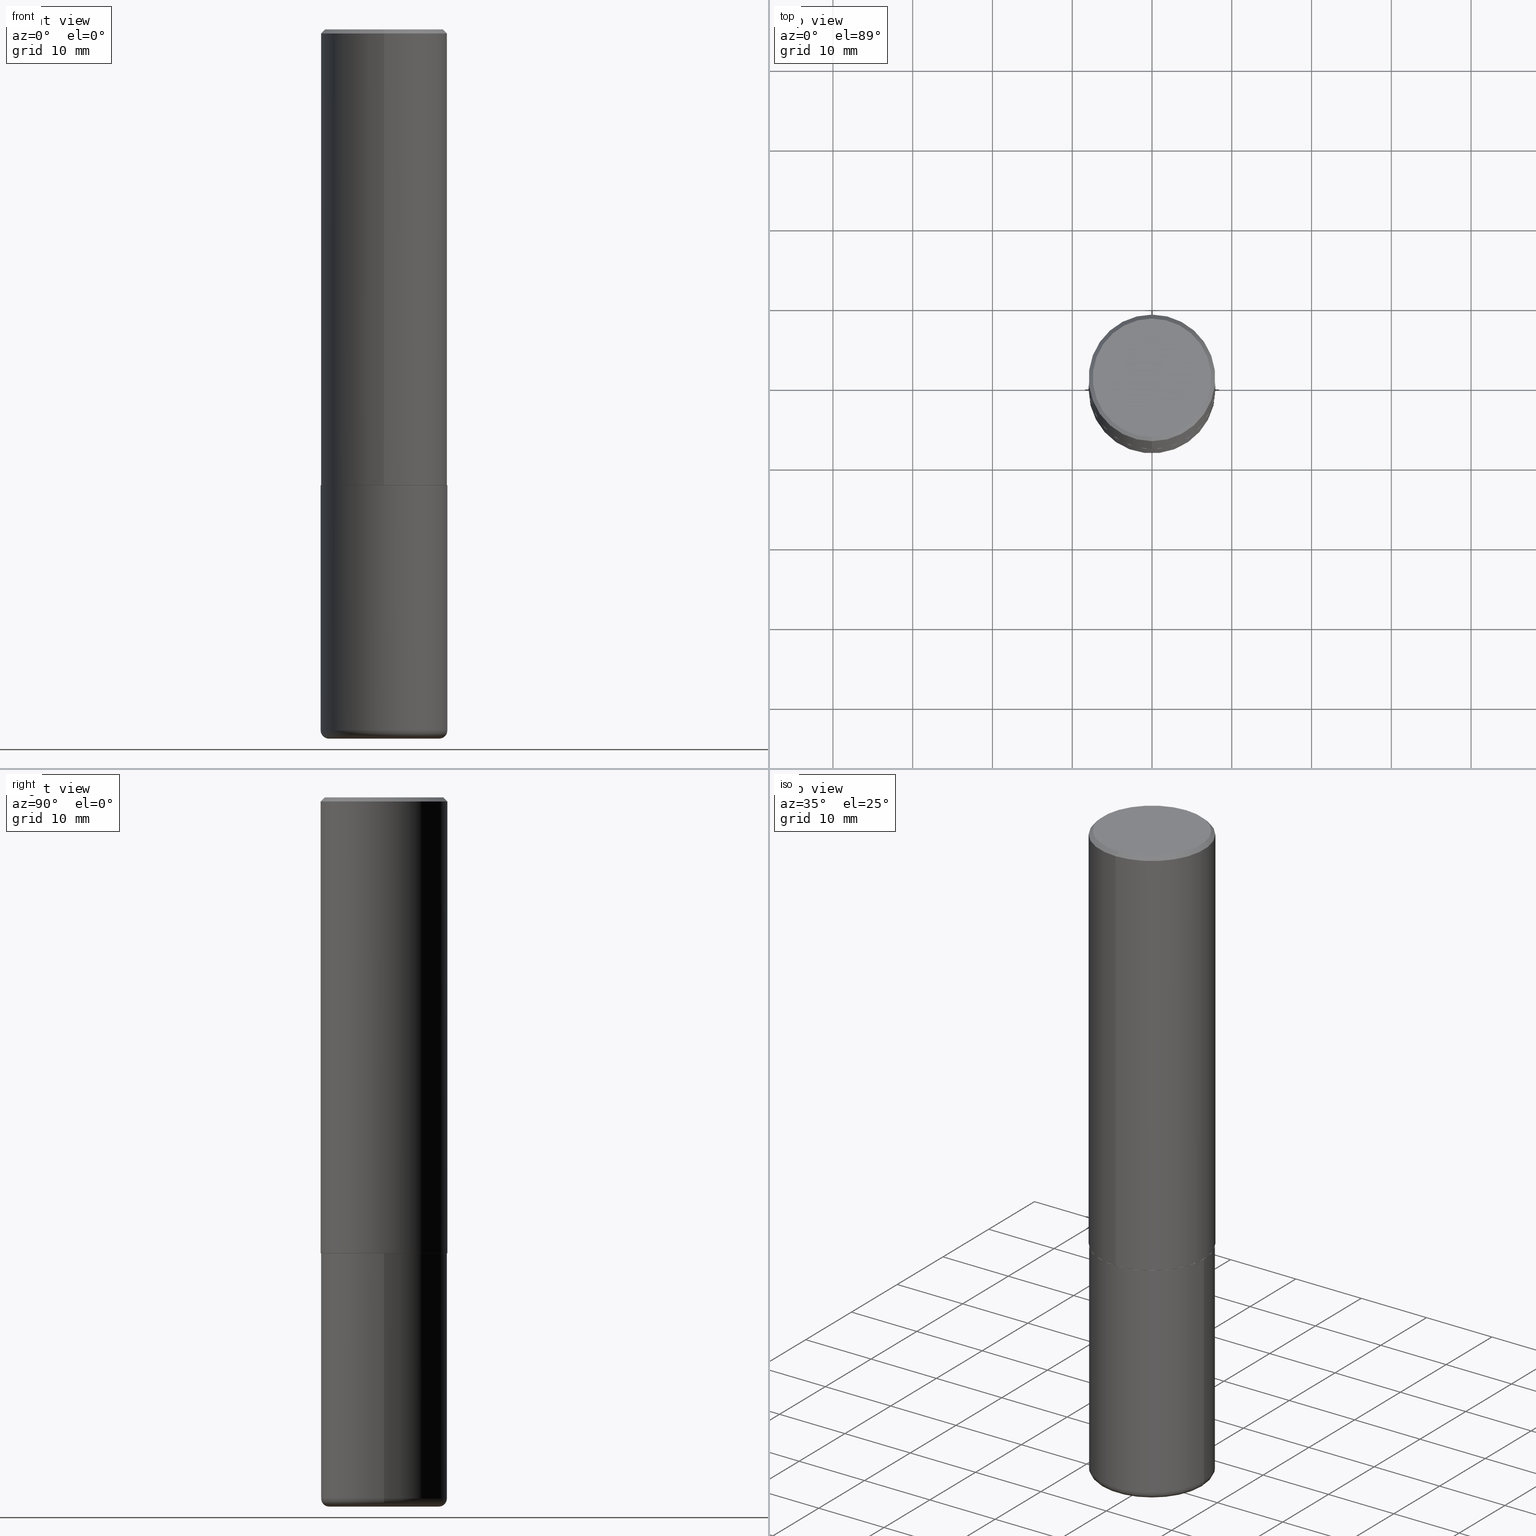
[diagram: canonical four-view strip — front | top / right | iso, engineering-drawing reading convention]
A machine part, canonical four-view strip (front | top / right | iso — engineering-drawing reading convention). The complete STEP part file that produces these views, byte-faithful:
ISO-10303-21;
HEADER;
FILE_DESCRIPTION (( 'STEP AP203' ),
    '1' );
FILE_NAME ('36861.STEP',
    '2024-03-01T18:21:53',
    ( '' ),
    ( '' ),
    'SwSTEP 2.0',
    'SolidWorks 2023',
    '' );
FILE_SCHEMA (( 'CONFIG_CONTROL_DESIGN' ));
ENDSEC;

DATA;
#1 = CYLINDRICAL_SURFACE ( 'NONE', #195, 0.3125000000000002220 ) ;
#2 = ORIENTED_EDGE ( 'NONE', *, *, #361, .T. ) ;
#3 = ORIENTED_EDGE ( 'NONE', *, *, #75, .T. ) ;
#4 = CARTESIAN_POINT ( 'NONE',  ( 8.461322069400571907E-29, -1.208052543239728275E-14, -3.459999999999999520 ) ) ;
#5 = DIRECTION ( 'NONE',  ( -2.445468806185136597E-29, 3.491481338843145583E-15, 1.000000000000000000 ) ) ;
#6 = CIRCLE ( 'NONE', #371, 0.3125000000000001665 ) ;
#7 = UNCERTAINTY_MEASURE_WITH_UNIT (LENGTH_MEASURE( 1.000000000000000082E-05 ), #348, 'distance_accuracy_value', 'NONE');
#8 = PERSON_AND_ORGANIZATION_ROLE ( 'creator' ) ;
#9 = CARTESIAN_POINT ( 'NONE',  ( -2.175192874099216718E-15, -0.3115000000000078817, -2.249999999999998224 ) ) ;
#10 = PERSON_AND_ORGANIZATION ( #57, #71 ) ;
#11 = ADVANCED_FACE ( 'NONE', ( #352 ), #149, .T. ) ;
#12 = APPROVAL_ROLE ( '' ) ;
#13 = APPROVAL_DATE_TIME ( #363, #164 ) ;
#14 = DIRECTION ( 'NONE',  ( 6.982962677686265133E-15, 1.000000000000000000, -3.496765431890254947E-15 ) ) ;
#15 = SECURITY_CLASSIFICATION ( '', '', #366 ) ;
#16 = COORDINATED_UNIVERSAL_TIME_OFFSET ( 5, 0, .BEHIND. ) ;
#17 = CARTESIAN_POINT ( 'NONE',  ( 5.502179026237298094E-29, -7.856013147513163975E-15, -2.249999999999999556 ) ) ;
#18 = ORIENTED_EDGE ( 'NONE', *, *, #405, .F. ) ;
#19 = VERTEX_POINT ( 'NONE', #284 ) ;
#20 = EDGE_LOOP ( 'NONE', ( #146, #148, #407, #311 ) ) ;
#21 = AXIS2_PLACEMENT_3D ( 'NONE', #293, #40, #393 ) ;
#22 = EDGE_LOOP ( 'NONE', ( #409, #334 ) ) ;
#23 = DIRECTION ( 'NONE',  ( -2.445468806185136597E-29, 3.491481338843145583E-15, 1.000000000000000000 ) ) ;
#24 = ORIENTED_EDGE ( 'NONE', *, *, #408, .F. ) ;
#25 = PRODUCT_DEFINITION ( 'UNKNOWN', '', #163, #364 ) ;
#26 = FACE_OUTER_BOUND ( 'NONE', #306, .T. ) ;
#27 = ORIENTED_EDGE ( 'NONE', *, *, #154, .F. ) ;
#28 = DIRECTION ( 'NONE',  ( -6.982962677686265922E-15, -1.000000000000000000, 3.507991003100177457E-15 ) ) ;
#29 = ORIENTED_EDGE ( 'NONE', *, *, #135, .T. ) ;
#30 = EDGE_CURVE ( 'NONE', #108, #211, #64, .T. ) ;
#31 = DIRECTION ( 'NONE',  ( -4.851104656540965853E-15, -0.7071067811865502373, -0.7071067811865447972 ) ) ;
#32 = LENGTH_MEASURE_WITH_UNIT ( LENGTH_MEASURE( 0.02539999999999999897 ), #323 );
#33 = CC_DESIGN_PERSON_AND_ORGANIZATION_ASSIGNMENT ( #138, #235, ( #15 ) ) ;
#34 = DIRECTION ( 'NONE',  ( 1.000000000000000000, -6.982962677686266711E-15, 4.876176775795936353E-29 ) ) ;
#35 = APPLICATION_PROTOCOL_DEFINITION ( 'international standard', 'config_control_design', 1994, #234 ) ;
#36 = AXIS2_PLACEMENT_3D ( 'NONE', #292, #153, #159 ) ;
#37 = VECTOR ( 'NONE', #59, 39.37007874015748143 ) ;
#38 = APPROVAL_DATE_TIME ( #96, #217 ) ;
#39 = CARTESIAN_POINT ( 'NONE',  ( 4.890825801099838597E-31, -6.983122797789506086E-17, -0.02000000000000007327 ) ) ;
#40 = DIRECTION ( 'NONE',  ( 0.000000000000000000, 0.000000000000000000, 1.000000000000000000 ) ) ;
#41 = DIRECTION ( 'NONE',  ( 1.000000000000000000, -6.982962677686269077E-15, 0.000000000000000000 ) ) ;
#42 = AXIS2_PLACEMENT_3D ( 'NONE', #395, #229, #357 ) ;
#43 = DIRECTION ( 'NONE',  ( -6.982962677686265922E-15, -1.000000000000000000, 3.507991003100177457E-15 ) ) ;
#44 = APPLICATION_CONTEXT ( 'configuration controlled 3d designs of mechanical parts and assemblies' ) ;
#45 = SHAPE_DEFINITION_REPRESENTATION ( #301, #400 ) ;
#46 = CARTESIAN_POINT ( 'NONE',  ( -2.075300644325888676E-15, -0.2925000000000000377, 1.025573639231903446E-15 ) ) ;
#47 = VERTEX_POINT ( 'NONE', #313 ) ;
#48 = CIRCLE ( 'NONE', #130, 0.2925000000000000377 ) ;
#49 = ADVANCED_FACE ( 'NONE', ( #126 ), #299, .T. ) ;
#50 = LOCAL_TIME ( 13, 21, 53.00000000000000000, #231 ) ;
#51 = ORIENTED_EDGE ( 'NONE', *, *, #258, .F. ) ;
#52 = ORIENTED_EDGE ( 'NONE', *, *, #133, .F. ) ;
#53 = ORIENTED_EDGE ( 'NONE', *, *, #189, .F. ) ;
#54 = MANIFOLD_SOLID_BREP ( 'Body-Move/Copy2[1]', #222 ) ;
#55 = DIRECTION ( 'NONE',  ( -6.982962677686265922E-15, -1.000000000000000000, 3.491561398894740027E-15 ) ) ;
#56 = CIRCLE ( 'NONE', #261, 0.3114999999999999991 ) ;
#57 = PERSON ( 'UNSPECIFIED', 'UNSPECIFIED', 'UNSPECIFIED', ('UNSPECIFIED'), ('UNSPECIFIED'), ('UNSPECIFIED') ) ;
#58 = ORIENTED_EDGE ( 'NONE', *, *, #394, .F. ) ;
#59 = DIRECTION ( 'NONE',  ( 5.024295867789263036E-15, 0.7071067811867189912, 0.7071067811863760433 ) ) ;
#60 = DIRECTION ( 'NONE',  ( 1.000000000000000000, -6.982962677686264344E-15, 0.000000000000000000 ) ) ;
#61 = DIRECTION ( 'NONE',  ( -6.982962677686265133E-15, -1.000000000000000000, 3.496765431890254947E-15 ) ) ;
#62 = CARTESIAN_POINT ( 'NONE',  ( 8.461322069400571907E-29, -1.208052543239728275E-14, -3.459999999999999520 ) ) ;
#63 = EDGE_CURVE ( 'NONE', #70, #179, #207, .T. ) ;
#64 = CIRCLE ( 'NONE', #416, 0.3124999999999999445 ) ;
#65 = DIRECTION ( 'NONE',  ( 1.000000000000000000, -6.982962677686269077E-15, 0.000000000000000000 ) ) ;
#66 = ADVANCED_FACE ( 'NONE', ( #68 ), #355, .T. ) ;
#67 = CARTESIAN_POINT ( 'NONE',  ( 0.3125000000000000000, -1.003800884917403522E-14, -2.249999999999999556 ) ) ;
#68 = FACE_OUTER_BOUND ( 'NONE', #412, .T. ) ;
#69 =( NAMED_UNIT ( * ) SI_UNIT ( $, .STERADIAN. ) SOLID_ANGLE_UNIT ( ) );
#70 = VERTEX_POINT ( 'NONE', #128 ) ;
#71 = ORGANIZATION ( 'UNSPECIFIED', 'UNSPECIFIED', '' ) ;
#72 = FACE_OUTER_BOUND ( 'NONE', #20, .T. ) ;
#73 = DIRECTION ( 'NONE',  ( 2.445412900549910575E-29, -3.491561398894740027E-15, -1.000000000000000000 ) ) ;
#74 = CIRCLE ( 'NONE', #232, 0.3124999999999999445 ) ;
#75 = EDGE_CURVE ( 'NONE', #47, #411, #335, .T. ) ;
#76 = DATE_TIME_ROLE ( 'classification_date' ) ;
#77 = FACE_OUTER_BOUND ( 'NONE', #209, .T. ) ;
#78 = ORIENTED_EDGE ( 'NONE', *, *, #109, .T. ) ;
#79 = VERTEX_POINT ( 'NONE', #95 ) ;
#80 = CIRCLE ( 'NONE', #308, 0.2725000000000000200 ) ;
#81 = ORIENTED_EDGE ( 'NONE', *, *, #154, .T. ) ;
#82 = EDGE_LOOP ( 'NONE', ( #281, #250, #249, #307 ) ) ;
#83 = PLANE ( 'NONE',  #379 ) ;
#84 = ORIENTED_EDGE ( 'NONE', *, *, #109, .F. ) ;
#85 = VECTOR ( 'NONE', #92, 39.37007874015748143 ) ;
#86 = CARTESIAN_POINT ( 'NONE',  ( 4.890825801099838597E-31, -6.983122797789506086E-17, -0.02000000000000007327 ) ) ;
#87 = AXIS2_PLACEMENT_3D ( 'NONE', #140, #178, #285 ) ;
#88 = CARTESIAN_POINT ( 'NONE',  ( -1.049554112522401722E-46, 1.498553730746400387E-32, 4.291930055191840733E-18 ) ) ;
#89 = CARTESIAN_POINT ( 'NONE',  ( 5.499733613336748778E-29, -7.852521586114269735E-15, -2.248999999999999666 ) ) ;
#90 = EDGE_CURVE ( 'NONE', #242, #344, #322, .T. ) ;
#91 = CARTESIAN_POINT ( 'NONE',  ( 0.2725000000000000200, -1.412304201562051765E-14, -3.500000000000000444 ) ) ;
#92 = DIRECTION ( 'NONE',  ( 4.937700262164549620E-15, 0.7071067811865453523, -0.7071067811865496822 ) ) ;
#93 = ADVANCED_FACE ( 'NONE', ( #262 ), #156, .T. ) ;
#94 = DIRECTION ( 'NONE',  ( -6.982962677686266711E-15, -1.000000000000000000, 3.491481338843145583E-15 ) ) ;
#95 = CARTESIAN_POINT ( 'NONE',  ( -0.2725000000000000200, -1.007201755707584997E-14, -3.500000000000000444 ) ) ;
#96 = DATE_AND_TIME ( #298, #325 ) ;
#97 = FACE_OUTER_BOUND ( 'NONE', #369, .T. ) ;
#98 = PERSON_AND_ORGANIZATION ( #57, #71 ) ;
#99 = DIRECTION ( 'NONE',  ( -4.937700262165728178E-15, -0.7071067811867141062, 0.7071067811863809283 ) ) ;
#100 = COORDINATED_UNIVERSAL_TIME_OFFSET ( 5, 0, .BEHIND. ) ;
#101 = CC_DESIGN_SECURITY_CLASSIFICATION ( #15, ( #163 ) ) ;
#102 = CARTESIAN_POINT ( 'NONE',  ( -0.3125000000000000000, 2.220446049250313081E-15, -1.537167215704658232E-29 ) ) ;
#103 = ADVANCED_FACE ( 'NONE', ( #97 ), #270, .T. ) ;
#104 = CC_DESIGN_PERSON_AND_ORGANIZATION_ASSIGNMENT ( #386, #8, ( #163 ) ) ;
#105 = CARTESIAN_POINT ( 'NONE',  ( 2.182175836776959530E-15, 0.3125000000000000555, -0.02000000000000116615 ) ) ;
#106 = CC_DESIGN_APPROVAL ( #217, ( #25 ) ) ;
#107 = CARTESIAN_POINT ( 'NONE',  ( -2.143905624303604008E-15, -0.3125000000000002220, -0.01999999999999898040 ) ) ;
#108 = VERTEX_POINT ( 'NONE', #381 ) ;
#109 = EDGE_CURVE ( 'NONE', #242, #19, #48, .T. ) ;
#110 = FACE_OUTER_BOUND ( 'NONE', #342, .T. ) ;
#111 = EDGE_LOOP ( 'NONE', ( #2, #276, #176, #53 ) ) ;
#112 = ORIENTED_EDGE ( 'NONE', *, *, #200, .T. ) ;
#113 = VECTOR ( 'NONE', #418, 39.37007874015748143 ) ;
#114 = ORIENTED_EDGE ( 'NONE', *, *, #115, .F. ) ;
#115 = EDGE_CURVE ( 'NONE', #179, #175, #287, .T. ) ;
#116 = EDGE_LOOP ( 'NONE', ( #280, #403, #27, #214 ) ) ;
#117 = CC_DESIGN_DATE_AND_TIME_ASSIGNMENT ( #165, #259, ( #25 ) ) ;
#118 = DIRECTION ( 'NONE',  ( -1.000000000000000000, 6.982962677686265922E-15, -4.876176775795935793E-29 ) ) ;
#119 = CARTESIAN_POINT ( 'NONE',  ( 8.461322069400571907E-29, -1.208052543239728275E-14, -3.459999999999999520 ) ) ;
#120 = AXIS2_PLACEMENT_3D ( 'NONE', #39, #219, #14 ) ;
#121 = CARTESIAN_POINT ( 'NONE',  ( 5.502179026237298094E-29, -7.856013147513163975E-15, -2.249999999999999556 ) ) ;
#122 = EDGE_CURVE ( 'NONE', #70, #344, #123, .T. ) ;
#123 = LINE ( 'NONE', #255, #316 ) ;
#124 = DIRECTION ( 'NONE',  ( -2.445412900549910575E-29, 3.491561398894740027E-15, 1.000000000000000000 ) ) ;
#125 = APPROVAL ( #264, 'UNSPECIFIED' ) ;
#126 = FACE_OUTER_BOUND ( 'NONE', #161, .T. ) ;
#127 = CALENDAR_DATE ( 2024, 1, 3 ) ;
#128 = CARTESIAN_POINT ( 'NONE',  ( -2.182175836776905099E-15, -0.3125000000000081601, -2.248999999999998778 ) ) ;
#129 = DIRECTION ( 'NONE',  ( -1.000000000000000000, 7.105427357601027102E-15, 0.000000000000000000 ) ) ;
#130 = AXIS2_PLACEMENT_3D ( 'NONE', #88, #383, #218 ) ;
#131 = AXIS2_PLACEMENT_3D ( 'NONE', #351, #134, #129 ) ;
#132 = CARTESIAN_POINT ( 'NONE',  ( 5.502304813916556222E-29, -7.855833012397076871E-15, -2.249999999999999556 ) ) ;
#133 = EDGE_CURVE ( 'NONE', #19, #175, #257, .T. ) ;
#134 = DIRECTION ( 'NONE',  ( 7.105427357601001859E-15, 1.000000000000000000, -3.491481338843145583E-15 ) ) ;
#135 = EDGE_CURVE ( 'NONE', #211, #411, #350, .T. ) ;
#136 = COORDINATED_UNIVERSAL_TIME_OFFSET ( 5, 0, .BEHIND. ) ;
#137 = CIRCLE ( 'NONE', #208, 0.3125000000000001665 ) ;
#138 = PERSON_AND_ORGANIZATION ( #57, #71 ) ;
#139 = CALENDAR_DATE ( 2024, 1, 3 ) ;
#140 = CARTESIAN_POINT ( 'NONE',  ( 2.042516583223233328E-15, 0.2925000000000000377, -1.019135744149115702E-15 ) ) ;
#141 = VECTOR ( 'NONE', #99, 39.37007874015748143 ) ;
#142 = ORIENTED_EDGE ( 'NONE', *, *, #329, .T. ) ;
#143 = AXIS2_PLACEMENT_3D ( 'NONE', #168, #205, #256 ) ;
#144 = EDGE_CURVE ( 'NONE', #108, #47, #300, .T. ) ;
#145 = FACE_OUTER_BOUND ( 'NONE', #305, .T. ) ;
#146 = ORIENTED_EDGE ( 'NONE', *, *, #90, .F. ) ;
#147 = ORIENTED_EDGE ( 'NONE', *, *, #405, .T. ) ;
#148 = ORIENTED_EDGE ( 'NONE', *, *, #329, .F. ) ;
#149 = CONICAL_SURFACE ( 'NONE', #36, 0.3114999999999999991, 0.7853981633976873100 ) ;
#150 =( GEOMETRIC_REPRESENTATION_CONTEXT ( 3 ) GLOBAL_UNCERTAINTY_ASSIGNED_CONTEXT ( ( #7 ) ) GLOBAL_UNIT_ASSIGNED_CONTEXT ( ( #348, #320, #69 ) ) REPRESENTATION_CONTEXT ( 'NONE', 'WORKASPACE' ) );
#151 = VERTEX_POINT ( 'NONE', #399 ) ;
#152 = FACE_OUTER_BOUND ( 'NONE', #373, .T. ) ;
#153 = DIRECTION ( 'NONE',  ( -2.445412900549910575E-29, 3.491561398894740027E-15, 1.000000000000000000 ) ) ;
#154 = EDGE_CURVE ( 'NONE', #411, #47, #324, .T. ) ;
#155 = PLANE ( 'NONE',  #87 ) ;
#156 = CYLINDRICAL_SURFACE ( 'NONE', #278, 0.3125000000000000000 ) ;
#157 = VECTOR ( 'NONE', #202, 39.37007874015748143 ) ;
#158 = FACE_OUTER_BOUND ( 'NONE', #82, .T. ) ;
#159 = DIRECTION ( 'NONE',  ( -6.982962677686265922E-15, -1.000000000000000000, 3.507991003100177457E-15 ) ) ;
#160 = ORIENTED_EDGE ( 'NONE', *, *, #345, .F. ) ;
#161 = EDGE_LOOP ( 'NONE', ( #24, #112, #147, #172 ) ) ;
#162 = CALENDAR_DATE ( 2024, 1, 3 ) ;
#163 = PRODUCT_DEFINITION_FORMATION_WITH_SPECIFIED_SOURCE ( 'ANY', '', #182, .NOT_KNOWN. ) ;
#164 = APPROVAL ( #404, 'UNSPECIFIED' ) ;
#165 = DATE_AND_TIME ( #127, #380 ) ;
#166 = DIRECTION ( 'NONE',  ( 1.000000000000000000, -6.982962677686264344E-15, 0.000000000000000000 ) ) ;
#167 = CIRCLE ( 'NONE', #224, 0.3125000000000002776 ) ;
#168 = CARTESIAN_POINT ( 'NONE',  ( 5.502304813916556222E-29, -7.855833012397076871E-15, -2.249999999999999556 ) ) ;
#169 = COORDINATED_UNIVERSAL_TIME_OFFSET ( 5, 0, .BEHIND. ) ;
#170 = FACE_OUTER_BOUND ( 'NONE', #22, .T. ) ;
#171 = LOCAL_TIME ( 13, 21, 53.00000000000000000, #16 ) ;
#172 = ORIENTED_EDGE ( 'NONE', *, *, #30, .F. ) ;
#173 = ORIENTED_EDGE ( 'NONE', *, *, #200, .F. ) ;
#174 = ADVANCED_FACE ( 'NONE', ( #72 ), #286, .T. ) ;
#175 = VERTEX_POINT ( 'NONE', #105 ) ;
#176 = ORIENTED_EDGE ( 'NONE', *, *, #63, .F. ) ;
#177 = CONICAL_SURFACE ( 'NONE', #120, 0.3125000000000001665, 0.7853981633974487231 ) ;
#178 = DIRECTION ( 'NONE',  ( 2.445412900549910856E-29, -3.491561398894739632E-15, -1.000000000000000000 ) ) ;
#179 = VERTEX_POINT ( 'NONE', #239 ) ;
#180 = CARTESIAN_POINT ( 'NONE',  ( 0.3125000000000001665, -1.426270126917424109E-14, -3.459999999999999520 ) ) ;
#181 = DIRECTION ( 'NONE',  ( 1.000000000000000000, -6.982962677686269077E-15, 4.883557194083113462E-29 ) ) ;
#182 = PRODUCT ( '36861', '36861', '', ( #326 ) ) ;
#183 = CARTESIAN_POINT ( 'NONE',  ( 5.502179026237298094E-29, -7.856013147513163975E-15, -2.249999999999999556 ) ) ;
#184 = CARTESIAN_POINT ( 'NONE',  ( 8.461322069400571907E-29, -1.208052543239728275E-14, -3.459999999999999520 ) ) ;
#185 = AXIS2_PLACEMENT_3D ( 'NONE', #119, #227, #252 ) ;
#186 = CIRCLE ( 'NONE', #358, 0.04000000000000025757 ) ;
#187 = DIRECTION ( 'NONE',  ( 1.000000000000000000, -6.982962677686287221E-15, 0.000000000000000000 ) ) ;
#188 = DIRECTION ( 'NONE',  ( -6.982962677686265922E-15, -1.000000000000000000, 3.496765431890253764E-15 ) ) ;
#189 = EDGE_CURVE ( 'NONE', #206, #70, #296, .T. ) ;
#190 = MANIFOLD_SOLID_BREP ( 'Body-Move/Copy2[2]', #303 ) ;
#191 = DIRECTION ( 'NONE',  ( -2.445412900549910575E-29, 3.491561398894740027E-15, 1.000000000000000000 ) ) ;
#192 = APPROVAL_ROLE ( '' ) ;
#193 = ORIENTED_EDGE ( 'NONE', *, *, #327, .T. ) ;
#194 = VECTOR ( 'NONE', #31, 39.37007874015748143 ) ;
#195 = AXIS2_PLACEMENT_3D ( 'NONE', #213, #340, #55 ) ;
#196 = DIMENSIONAL_EXPONENTS ( 1.000000000000000000, 0.000000000000000000, 0.000000000000000000, 0.000000000000000000, 0.000000000000000000, 0.000000000000000000, 0.000000000000000000 ) ;
#197 = AXIS2_PLACEMENT_3D ( 'NONE', #304, #275, #118 ) ;
#198 = FACE_OUTER_BOUND ( 'NONE', #248, .T. ) ;
#199 = PERSON_AND_ORGANIZATION ( #57, #71 ) ;
#200 = EDGE_CURVE ( 'NONE', #79, #370, #245, .T. ) ;
#201 = CIRCLE ( 'NONE', #131, 0.04000000000000025757 ) ;
#202 = DIRECTION ( 'NONE',  ( -2.445468806185136877E-29, 3.491481338843145188E-15, 1.000000000000000000 ) ) ;
#203 = ADVANCED_FACE ( 'NONE', ( #198 ), #177, .T. ) ;
#204 = CARTESIAN_POINT ( 'NONE',  ( 5.502179026237298094E-29, -7.856013147513165553E-15, -2.249999999999999556 ) ) ;
#205 = DIRECTION ( 'NONE',  ( 2.438088387897960049E-29, -3.491481338843145188E-15, -1.000000000000000000 ) ) ;
#206 = VERTEX_POINT ( 'NONE', #216 ) ;
#207 = CIRCLE ( 'NONE', #265, 0.3125000000000002776 ) ;
#208 = AXIS2_PLACEMENT_3D ( 'NONE', #86, #402, #384 ) ;
#209 = EDGE_LOOP ( 'NONE', ( #51, #336, #244, #160 ) ) ;
#210 = ADVANCED_FACE ( 'NONE', ( #77 ), #238, .T. ) ;
#211 = VERTEX_POINT ( 'NONE', #180 ) ;
#212 = ORIENTED_EDGE ( 'NONE', *, *, #408, .T. ) ;
#213 = CARTESIAN_POINT ( 'NONE',  ( 0.000000000000000000, 0.000000000000000000, 0.000000000000000000 ) ) ;
#214 = ORIENTED_EDGE ( 'NONE', *, *, #135, .F. ) ;
#215 = AXIS2_PLACEMENT_3D ( 'NONE', #382, #272, #377 ) ;
#216 = CARTESIAN_POINT ( 'NONE',  ( -2.175192874099216718E-15, -0.3115000000000078817, -2.249999999999998224 ) ) ;
#217 = APPROVAL ( #353, 'UNSPECIFIED' ) ;
#218 = DIRECTION ( 'NONE',  ( -6.982962677686266711E-15, -1.000000000000000000, 3.491561398894740027E-15 ) ) ;
#219 = DIRECTION ( 'NONE',  ( 2.445412900549910575E-29, -3.491561398894740027E-15, -1.000000000000000000 ) ) ;
#220 = DIRECTION ( 'NONE',  ( -6.982962677686265922E-15, -1.000000000000000000, 3.491561398894740027E-15 ) ) ;
#221 = CARTESIAN_POINT ( 'NONE',  ( -2.143905624303604008E-15, -0.3125000000000002220, -0.01999999999999898040 ) ) ;
#222 = CLOSED_SHELL ( 'NONE', ( #93, #103, #269, #223, #49, #267 ) ) ;
#223 = ADVANCED_FACE ( 'NONE', ( #152 ), #283, .T. ) ;
#224 = AXIS2_PLACEMENT_3D ( 'NONE', #89, #241, #368 ) ;
#225 = CARTESIAN_POINT ( 'NONE',  ( 0.2725000000000000200, -1.398338276206678948E-14, -3.459999999999999520 ) ) ;
#226 = PERSON_AND_ORGANIZATION ( #57, #71 ) ;
#227 = DIRECTION ( 'NONE',  ( -2.445468806185136597E-29, 3.491481338843145583E-15, 1.000000000000000000 ) ) ;
#228 = APPLICATION_PROTOCOL_DEFINITION ( 'international standard', 'config_control_design', 1994, #44 ) ;
#229 = DIRECTION ( 'NONE',  ( -2.445468806185136597E-29, 3.491481338843145583E-15, 1.000000000000000000 ) ) ;
#230 = AXIS2_PLACEMENT_3D ( 'NONE', #184, #5, #181 ) ;
#231 = COORDINATED_UNIVERSAL_TIME_OFFSET ( 5, 0, .BEHIND. ) ;
#232 = AXIS2_PLACEMENT_3D ( 'NONE', #4, #297, #166 ) ;
#233 = CC_DESIGN_PERSON_AND_ORGANIZATION_ASSIGNMENT ( #98, #331, ( #163 ) ) ;
#234 = APPLICATION_CONTEXT ( 'configuration controlled 3d designs of mechanical parts and assemblies' ) ;
#235 = PERSON_AND_ORGANIZATION_ROLE ( 'classification_officer' ) ;
#236 = DIRECTION ( 'NONE',  ( -2.445468806185136597E-29, 3.491481338843145583E-15, 1.000000000000000000 ) ) ;
#237 = CALENDAR_DATE ( 2024, 1, 3 ) ;
#238 = CONICAL_SURFACE ( 'NONE', #271, 0.3114999999999999991, 0.7853981633976873100 ) ;
#239 = CARTESIAN_POINT ( 'NONE',  ( 2.220446049250342269E-15, 0.3124999999999924505, -2.249000000000000998 ) ) ;
#240 = DATE_AND_TIME ( #139, #253 ) ;
#241 = DIRECTION ( 'NONE',  ( -2.445412900549910575E-29, 3.491561398894740027E-15, 1.000000000000000000 ) ) ;
#242 = VERTEX_POINT ( 'NONE', #46 ) ;
#243 = DIRECTION ( 'NONE',  ( -2.445412900549910575E-29, 3.491561398894740027E-15, 1.000000000000000000 ) ) ;
#244 = ORIENTED_EDGE ( 'NONE', *, *, #189, .T. ) ;
#245 = CIRCLE ( 'NONE', #42, 0.2725000000000000200 ) ;
#246 = APPROVAL_PERSON_ORGANIZATION ( #10, #125, #192 ) ;
#247 = CC_DESIGN_DATE_AND_TIME_ASSIGNMENT ( #240, #76, ( #15 ) ) ;
#248 = EDGE_LOOP ( 'NONE', ( #84, #398, #339, #52 ) ) ;
#249 = ORIENTED_EDGE ( 'NONE', *, *, #354, .F. ) ;
#250 = ORIENTED_EDGE ( 'NONE', *, *, #115, .T. ) ;
#251 = DIRECTION ( 'NONE',  ( -2.445412900549910856E-29, 3.491561398894739632E-15, 1.000000000000000000 ) ) ;
#252 = DIRECTION ( 'NONE',  ( 1.000000000000000000, -6.982962677686269077E-15, 4.883557194083113462E-29 ) ) ;
#253 = LOCAL_TIME ( 13, 21, 53.00000000000000000, #169 ) ;
#254 = DIRECTION ( 'NONE',  ( -6.982962677686265922E-15, -1.000000000000000000, 3.507991003100177457E-15 ) ) ;
#255 = CARTESIAN_POINT ( 'NONE',  ( -2.182175836776959530E-15, -0.3125000000000002220, 1.091112937154607072E-15 ) ) ;
#256 = DIRECTION ( 'NONE',  ( -1.000000000000000000, 6.982962677686265922E-15, -4.876176775795935793E-29 ) ) ;
#257 = LINE ( 'NONE', #385, #85 ) ;
#258 = EDGE_CURVE ( 'NONE', #151, #179, #406, .T. ) ;
#259 = DATE_TIME_ROLE ( 'creation_date' ) ;
#260 = CARTESIAN_POINT ( 'NONE',  ( 5.499733613336748778E-29, -7.852521586114269735E-15, -2.248999999999999666 ) ) ;
#261 = AXIS2_PLACEMENT_3D ( 'NONE', #121, #243, #254 ) ;
#262 = FACE_OUTER_BOUND ( 'NONE', #116, .T. ) ;
#263 = DIRECTION ( 'NONE',  ( 6.982962677686265133E-15, 1.000000000000000000, -3.496765431890254947E-15 ) ) ;
#264 = APPROVAL_STATUS ( 'not_yet_approved' ) ;
#265 = AXIS2_PLACEMENT_3D ( 'NONE', #260, #191, #188 ) ;
#266 = ORIENTED_EDGE ( 'NONE', *, *, #144, .F. ) ;
#267 = ADVANCED_FACE ( 'NONE', ( #110 ), #375, .T. ) ;
#268 = DIRECTION ( 'NONE',  ( -2.445468806185136877E-29, 3.491481338843145188E-15, 1.000000000000000000 ) ) ;
#269 = ADVANCED_FACE ( 'NONE', ( #145 ), #415, .F. ) ;
#270 = TOROIDAL_SURFACE ( 'NONE', #185, 0.2725000000000000200, 0.04000000000000029227 ) ;
#271 = AXIS2_PLACEMENT_3D ( 'NONE', #17, #124, #43 ) ;
#272 = DIRECTION ( 'NONE',  ( -2.445412900549910575E-29, 3.491561398894740027E-15, 1.000000000000000000 ) ) ;
#273 = ORIENTED_EDGE ( 'NONE', *, *, #122, .T. ) ;
#274 = ADVANCED_FACE ( 'NONE', ( #26 ), #155, .F. ) ;
#275 = DIRECTION ( 'NONE',  ( 2.438088387897960049E-29, -3.491481338843145188E-15, -1.000000000000000000 ) ) ;
#276 = ORIENTED_EDGE ( 'NONE', *, *, #258, .T. ) ;
#277 = ORIENTED_EDGE ( 'NONE', *, *, #327, .F. ) ;
#278 = AXIS2_PLACEMENT_3D ( 'NONE', #317, #414, #34 ) ;
#279 = APPROVAL_PERSON_ORGANIZATION ( #390, #217, #359 ) ;
#280 = ORIENTED_EDGE ( 'NONE', *, *, #394, .T. ) ;
#281 = ORIENTED_EDGE ( 'NONE', *, *, #63, .T. ) ;
#282 = EDGE_CURVE ( 'NONE', #151, #206, #56, .T. ) ;
#283 = CYLINDRICAL_SURFACE ( 'NONE', #341, 0.3125000000000000000 ) ;
#284 = CARTESIAN_POINT ( 'NONE',  ( 2.112346210000096232E-15, 0.2925000000000000377, -1.016989779121519787E-15 ) ) ;
#285 = DIRECTION ( 'NONE',  ( 6.982962677686265922E-15, 1.000000000000000000, -3.491561398894739632E-15 ) ) ;
#286 = CONICAL_SURFACE ( 'NONE', #396, 0.3125000000000001665, 0.7853981633974487231 ) ;
#287 = LINE ( 'NONE', #347, #113 ) ;
#288 = CC_DESIGN_APPROVAL ( #164, ( #15 ) ) ;
#289 = DIRECTION ( 'NONE',  ( -6.982962677686265922E-15, -1.000000000000000000, 3.491561398894739632E-15 ) ) ;
#290 = ADVANCED_FACE ( 'NONE', ( #170 ), #83, .F. ) ;
#291 = DIRECTION ( 'NONE',  ( -2.445412900549910575E-29, 3.491561398894739632E-15, 1.000000000000000000 ) ) ;
#292 = CARTESIAN_POINT ( 'NONE',  ( 5.502179026237298094E-29, -7.856013147513163975E-15, -2.249999999999999556 ) ) ;
#293 = CARTESIAN_POINT ( 'NONE',  ( 0.000000000000000000, 0.000000000000000000, 0.000000000000000000 ) ) ;
#294 = DIRECTION ( 'NONE',  ( -2.445468806185136597E-29, 3.491481338843145583E-15, 1.000000000000000000 ) ) ;
#295 = DATE_AND_TIME ( #162, #50 ) ;
#296 = LINE ( 'NONE', #9, #141 ) ;
#297 = DIRECTION ( 'NONE',  ( -2.445468806185136597E-29, 3.491481338843145583E-15, 1.000000000000000000 ) ) ;
#298 = CALENDAR_DATE ( 2024, 1, 3 ) ;
#299 = TOROIDAL_SURFACE ( 'NONE', #230, 0.2725000000000000200, 0.04000000000000029227 ) ;
#300 = LINE ( 'NONE', #102, #349 ) ;
#301 = PRODUCT_DEFINITION_SHAPE ( 'NONE', 'NONE',  #25 ) ;
#302 = DIRECTION ( 'NONE',  ( -2.445468806185136597E-29, 3.491481338843145583E-15, 1.000000000000000000 ) ) ;
#303 = CLOSED_SHELL ( 'NONE', ( #11, #314, #203, #174, #66, #210, #290, #274 ) ) ;
#304 = CARTESIAN_POINT ( 'NONE',  ( 3.658783094452102937E-29, -1.923777586233627620E-14, -3.500000000000000444 ) ) ;
#305 = EDGE_LOOP ( 'NONE', ( #81, #3 ) ) ;
#306 = EDGE_LOOP ( 'NONE', ( #142, #78 ) ) ;
#307 = ORIENTED_EDGE ( 'NONE', *, *, #122, .F. ) ;
#308 = AXIS2_PLACEMENT_3D ( 'NONE', #310, #23, #413 ) ;
#309 = ORIENTED_EDGE ( 'NONE', *, *, #345, .T. ) ;
#310 = CARTESIAN_POINT ( 'NONE',  ( 8.559140821647978089E-29, -1.222018468595101092E-14, -3.500000000000000444 ) ) ;
#311 = ORIENTED_EDGE ( 'NONE', *, *, #338, .T. ) ;
#312 = CARTESIAN_POINT ( 'NONE',  ( 0.000000000000000000, 0.000000000000000000, 0.000000000000000000 ) ) ;
#313 = CARTESIAN_POINT ( 'NONE',  ( -0.3125000000000000000, -7.747733173146866727E-15, -2.249999999999999556 ) ) ;
#314 = ADVANCED_FACE ( 'NONE', ( #158 ), #1, .T. ) ;
#315 = DIRECTION ( 'NONE',  ( -2.445412900549910575E-29, 3.491561398894740027E-15, 1.000000000000000000 ) ) ;
#316 = VECTOR ( 'NONE', #291, 39.37007874015748143 ) ;
#317 = CARTESIAN_POINT ( 'NONE',  ( 0.000000000000000000, 0.000000000000000000, 0.000000000000000000 ) ) ;
#318 = AXIS2_PLACEMENT_3D ( 'NONE', #183, #315, #28 ) ;
#319 = CC_DESIGN_PERSON_AND_ORGANIZATION_ASSIGNMENT ( #199, #356, ( #182 ) ) ;
#320 =( NAMED_UNIT ( * ) PLANE_ANGLE_UNIT ( ) SI_UNIT ( $, .RADIAN. ) );
#321 = DIRECTION ( 'NONE',  ( -2.445412900549910575E-29, 3.491561398894740027E-15, 1.000000000000000000 ) ) ;
#322 = LINE ( 'NONE', #221, #194 ) ;
#323 =( LENGTH_UNIT ( ) NAMED_UNIT ( * ) SI_UNIT ( $, .METRE. ) );
#324 = CIRCLE ( 'NONE', #387, 0.3125000000000000000 ) ;
#325 = LOCAL_TIME ( 13, 21, 53.00000000000000000, #100 ) ;
#326 = MECHANICAL_CONTEXT ( 'NONE', #44, 'mechanical' ) ;
#327 = EDGE_CURVE ( 'NONE', #370, #79, #80, .T. ) ;
#328 = APPROVAL_DATE_TIME ( #295, #125 ) ;
#329 = EDGE_CURVE ( 'NONE', #19, #242, #389, .T. ) ;
#330 = PERSON_AND_ORGANIZATION ( #57, #71 ) ;
#331 = PERSON_AND_ORGANIZATION_ROLE ( 'design_supplier' ) ;
#332 = CARTESIAN_POINT ( 'NONE',  ( 2.213340621892766504E-15, 0.3114999999999921720, -2.250000000000000444 ) ) ;
#333 = DIRECTION ( 'NONE',  ( -2.445412900549910575E-29, 3.491561398894740027E-15, 1.000000000000000000 ) ) ;
#334 = ORIENTED_EDGE ( 'NONE', *, *, #282, .F. ) ;
#335 = CIRCLE ( 'NONE', #365, 0.3125000000000000000 ) ;
#336 = ORIENTED_EDGE ( 'NONE', *, *, #282, .T. ) ;
#337 = ORIENTED_EDGE ( 'NONE', *, *, #75, .F. ) ;
#338 = EDGE_CURVE ( 'NONE', #175, #344, #137, .T. ) ;
#339 = ORIENTED_EDGE ( 'NONE', *, *, #354, .T. ) ;
#340 = DIRECTION ( 'NONE',  ( -2.445412900549910575E-29, 3.491561398894740027E-15, 1.000000000000000000 ) ) ;
#341 = AXIS2_PLACEMENT_3D ( 'NONE', #312, #302, #343 ) ;
#342 = EDGE_LOOP ( 'NONE', ( #277, #173 ) ) ;
#343 = DIRECTION ( 'NONE',  ( 1.000000000000000000, -6.982962677686266711E-15, 4.876176775795936353E-29 ) ) ;
#344 = VERTEX_POINT ( 'NONE', #107 ) ;
#345 = EDGE_CURVE ( 'NONE', #179, #70, #167, .T. ) ;
#346 = CARTESIAN_POINT ( 'NONE',  ( 4.890825801099838597E-31, -6.983122797789506086E-17, -0.02000000000000007327 ) ) ;
#347 = CARTESIAN_POINT ( 'NONE',  ( 2.220446049250314264E-15, 0.3125000000000002220, -1.091112937154607072E-15 ) ) ;
#348 =( CONVERSION_BASED_UNIT ( 'INCH', #32 ) LENGTH_UNIT ( ) NAMED_UNIT ( #196 ) );
#349 = VECTOR ( 'NONE', #268, 39.37007874015748143 ) ;
#350 = LINE ( 'NONE', #397, #157 ) ;
#351 = CARTESIAN_POINT ( 'NONE',  ( -0.2725000000000000200, -1.014429647745100841E-14, -3.459999999999999520 ) ) ;
#352 = FACE_OUTER_BOUND ( 'NONE', #111, .T. ) ;
#353 = APPROVAL_STATUS ( 'not_yet_approved' ) ;
#354 = EDGE_CURVE ( 'NONE', #344, #175, #6, .T. ) ;
#355 = CYLINDRICAL_SURFACE ( 'NONE', #378, 0.3125000000000002220 ) ;
#356 = PERSON_AND_ORGANIZATION_ROLE ( 'design_owner' ) ;
#357 = DIRECTION ( 'NONE',  ( 1.000000000000000000, -6.982962677686266711E-15, 0.000000000000000000 ) ) ;
#358 = AXIS2_PLACEMENT_3D ( 'NONE', #225, #94, #187 ) ;
#359 = APPROVAL_ROLE ( '' ) ;
#360 = CARTESIAN_POINT ( 'NONE',  ( 5.502304813916556222E-29, -7.855833012397076871E-15, -2.249999999999999556 ) ) ;
#361 = EDGE_CURVE ( 'NONE', #206, #151, #410, .T. ) ;
#362 = CARTESIAN_POINT ( 'NONE',  ( 4.890825801099838597E-31, -6.983122797789506086E-17, -0.02000000000000007327 ) ) ;
#363 = DATE_AND_TIME ( #237, #171 ) ;
#364 = DESIGN_CONTEXT ( 'detailed design', #234, 'design' ) ;
#365 = AXIS2_PLACEMENT_3D ( 'NONE', #132, #388, #65 ) ;
#366 = SECURITY_CLASSIFICATION_LEVEL ( 'unclassified' ) ;
#367 = CC_DESIGN_PERSON_AND_ORGANIZATION_ASSIGNMENT ( #226, #392, ( #25 ) ) ;
#368 = DIRECTION ( 'NONE',  ( -6.982962677686265922E-15, -1.000000000000000000, 3.496765431890253764E-15 ) ) ;
#369 = EDGE_LOOP ( 'NONE', ( #193, #212, #58, #18 ) ) ;
#370 = VERTEX_POINT ( 'NONE', #91 ) ;
#371 = AXIS2_PLACEMENT_3D ( 'NONE', #346, #333, #61 ) ;
#372 = ORIENTED_EDGE ( 'NONE', *, *, #338, .F. ) ;
#373 = EDGE_LOOP ( 'NONE', ( #266, #376, #29, #337 ) ) ;
#374 = PRODUCT_RELATED_PRODUCT_CATEGORY ( 'detail', '', ( #182 ) ) ;
#375 = PLANE ( 'NONE',  #197 ) ;
#376 = ORIENTED_EDGE ( 'NONE', *, *, #30, .T. ) ;
#377 = DIRECTION ( 'NONE',  ( -6.982962677686266711E-15, -1.000000000000000000, 3.491561398894740027E-15 ) ) ;
#378 = AXIS2_PLACEMENT_3D ( 'NONE', #391, #321, #220 ) ;
#379 = AXIS2_PLACEMENT_3D ( 'NONE', #204, #251, #289 ) ;
#380 = LOCAL_TIME ( 13, 21, 53.00000000000000000, #136 ) ;
#381 = CARTESIAN_POINT ( 'NONE',  ( -0.3125000000000001665, -9.860079383146966509E-15, -3.459999999999999520 ) ) ;
#382 = CARTESIAN_POINT ( 'NONE',  ( -1.049554112522401722E-46, 1.498553730746400387E-32, 4.291930055191840733E-18 ) ) ;
#383 = DIRECTION ( 'NONE',  ( -2.445412900549910575E-29, 3.491561398894740027E-15, 1.000000000000000000 ) ) ;
#384 = DIRECTION ( 'NONE',  ( -6.982962677686265133E-15, -1.000000000000000000, 3.496765431890254947E-15 ) ) ;
#385 = CARTESIAN_POINT ( 'NONE',  ( 2.182175836776959530E-15, 0.3125000000000000555, -0.02000000000000116615 ) ) ;
#386 = PERSON_AND_ORGANIZATION ( #57, #71 ) ;
#387 = AXIS2_PLACEMENT_3D ( 'NONE', #360, #236, #41 ) ;
#388 = DIRECTION ( 'NONE',  ( -2.445468806185136597E-29, 3.491481338843145583E-15, 1.000000000000000000 ) ) ;
#389 = CIRCLE ( 'NONE', #215, 0.2925000000000000377 ) ;
#390 = PERSON_AND_ORGANIZATION ( #57, #71 ) ;
#391 = CARTESIAN_POINT ( 'NONE',  ( 0.000000000000000000, 0.000000000000000000, 0.000000000000000000 ) ) ;
#392 = PERSON_AND_ORGANIZATION_ROLE ( 'creator' ) ;
#393 = DIRECTION ( 'NONE',  ( 1.000000000000000000, 0.000000000000000000, 0.000000000000000000 ) ) ;
#394 = EDGE_CURVE ( 'NONE', #211, #108, #74, .T. ) ;
#395 = CARTESIAN_POINT ( 'NONE',  ( 8.559140821647978089E-29, -1.222018468595101092E-14, -3.500000000000000444 ) ) ;
#396 = AXIS2_PLACEMENT_3D ( 'NONE', #362, #73, #263 ) ;
#397 = CARTESIAN_POINT ( 'NONE',  ( 0.3125000000000000000, -2.182175836776958347E-15, 1.523805242436230075E-29 ) ) ;
#398 = ORIENTED_EDGE ( 'NONE', *, *, #90, .T. ) ;
#399 = CARTESIAN_POINT ( 'NONE',  ( 2.216893335571567797E-15, 0.3114999999999921720, -2.250000000000000444 ) ) ;
#400 = ADVANCED_BREP_SHAPE_REPRESENTATION ( '36861', ( #54, #190, #21 ), #150 ) ;
#401 = CC_DESIGN_APPROVAL ( #125, ( #163 ) ) ;
#402 = DIRECTION ( 'NONE',  ( -2.445412900549910575E-29, 3.491561398894740027E-15, 1.000000000000000000 ) ) ;
#403 = ORIENTED_EDGE ( 'NONE', *, *, #144, .T. ) ;
#404 = APPROVAL_STATUS ( 'not_yet_approved' ) ;
#405 = EDGE_CURVE ( 'NONE', #370, #211, #186, .T. ) ;
#406 = LINE ( 'NONE', #332, #37 ) ;
#407 = ORIENTED_EDGE ( 'NONE', *, *, #133, .T. ) ;
#408 = EDGE_CURVE ( 'NONE', #79, #108, #201, .T. ) ;
#409 = ORIENTED_EDGE ( 'NONE', *, *, #361, .F. ) ;
#410 = CIRCLE ( 'NONE', #318, 0.3114999999999999991 ) ;
#411 = VERTEX_POINT ( 'NONE', #67 ) ;
#412 = EDGE_LOOP ( 'NONE', ( #114, #309, #273, #372 ) ) ;
#413 = DIRECTION ( 'NONE',  ( 1.000000000000000000, -6.982962677686266711E-15, 0.000000000000000000 ) ) ;
#414 = DIRECTION ( 'NONE',  ( -2.445468806185136597E-29, 3.491481338843145583E-15, 1.000000000000000000 ) ) ;
#415 = PLANE ( 'NONE',  #143 ) ;
#416 = AXIS2_PLACEMENT_3D ( 'NONE', #62, #294, #60 ) ;
#417 = APPROVAL_PERSON_ORGANIZATION ( #330, #164, #12 ) ;
#418 = DIRECTION ( 'NONE',  ( -2.445412900549910575E-29, 3.491561398894739632E-15, 1.000000000000000000 ) ) ;
ENDSEC;
END-ISO-10303-21;
